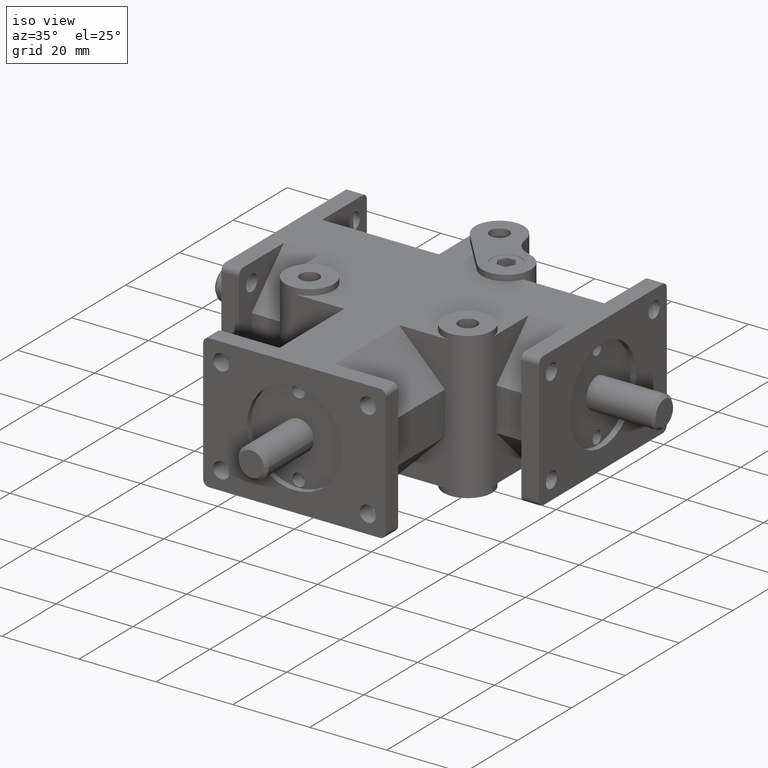
[diagram: clean part render]
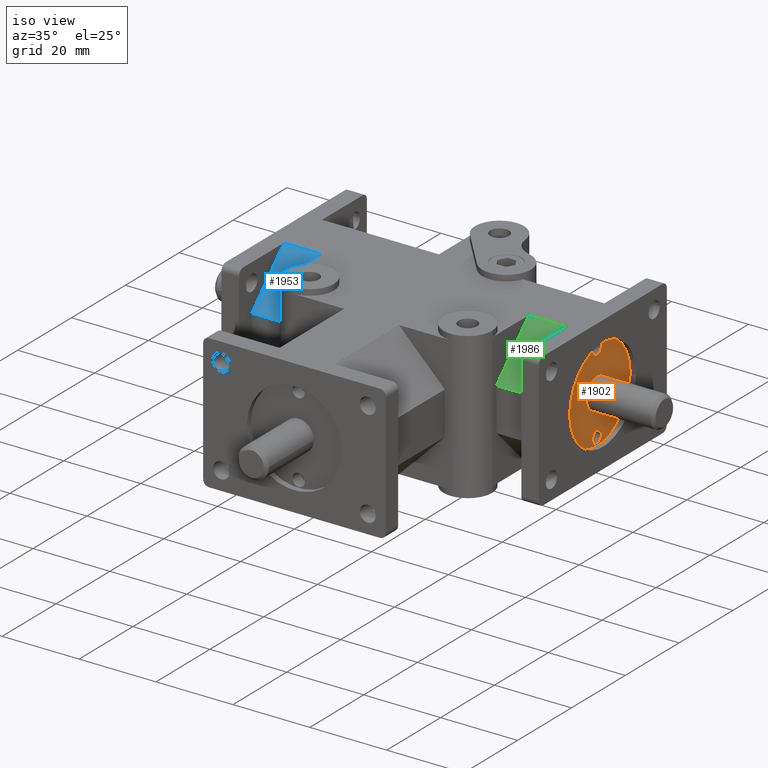
[diagram: same view with three faces highlighted in distinct colors, each labeled with its STEP entity id]
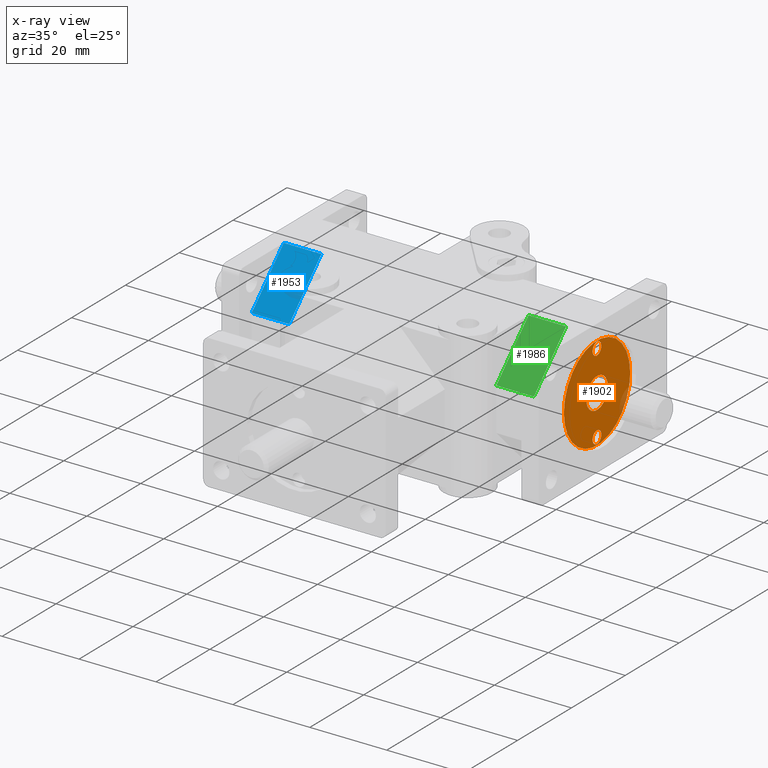
[diagram: x-ray of the same camera — body ghosted, the three highlighted faces saturated]
A machine part, iso view with three faces highlighted in distinct colors.
The next image is the same camera in x-ray (body ghosted, the three faces saturated) — at least one of them is partly hidden behind the body in this view.
Their STEP definitions:

[orange] entity #1902 — the highlighted planar face has unit normal (1, 0, 0).
#346=PLANE('',#2045);
#408=VERTEX_POINT('',#2759);
#410=VERTEX_POINT('',#2765);
#424=VERTEX_POINT('',#2806);
#427=VERTEX_POINT('',#2816);
#603=CIRCLE('',#2005,1.6256);
#605=CIRCLE('',#2009,1.6256);
#619=CIRCLE('',#2036,4.);
#622=CIRCLE('',#2043,12.3063);
#704=EDGE_CURVE('',#408,#408,#603,.T.);
#706=EDGE_CURVE('',#410,#410,#605,.T.);
#720=EDGE_CURVE('',#424,#424,#619,.T.);
#723=EDGE_CURVE('',#427,#427,#622,.T.);
#1001=ORIENTED_EDGE('',*,*,#704,.T.);
#1002=ORIENTED_EDGE('',*,*,#706,.T.);
#1003=ORIENTED_EDGE('',*,*,#720,.T.);
#1004=ORIENTED_EDGE('',*,*,#723,.T.);
#1521=EDGE_LOOP('',(#1001));
#1522=EDGE_LOOP('',(#1002));
#1523=EDGE_LOOP('',(#1003));
#1524=EDGE_LOOP('',(#1004));
#1720=FACE_BOUND('',#1521,.T.);
#1721=FACE_BOUND('',#1522,.T.);
#1722=FACE_BOUND('',#1523,.T.);
#1723=FACE_BOUND('',#1524,.T.);
#1902=ADVANCED_FACE('',(#1720,#1721,#1722,#1723),#346,.T.);
#2005=AXIS2_PLACEMENT_3D('',#2758,#2232,#2233);
#2009=AXIS2_PLACEMENT_3D('',#2764,#2239,#2240);
#2036=AXIS2_PLACEMENT_3D('',#2805,#2288,#2289);
#2043=AXIS2_PLACEMENT_3D('',#2815,#2300,#2301);
#2045=AXIS2_PLACEMENT_3D('',#2819,#2304,$);
#2232=DIRECTION('',(-1.,0.,0.));
#2233=DIRECTION('',(0.,1.6256,0.));
#2239=DIRECTION('',(-1.,0.,0.));
#2240=DIRECTION('',(0.,1.6256,0.));
#2288=DIRECTION('',(-1.,0.,0.));
#2289=DIRECTION('',(0.,4.,0.));
#2300=DIRECTION('',(1.,0.,0.));
#2301=DIRECTION('',(0.,12.3063,0.));
#2304=DIRECTION('',(1.,0.,0.));
#2758=CARTESIAN_POINT('',(39.751,55.5625,10.414));
#2759=CARTESIAN_POINT('',(39.751,53.9369,10.414));
#2764=CARTESIAN_POINT('',(39.751,55.5625,-10.414));
#2765=CARTESIAN_POINT('',(39.751,53.9369,-10.414));
#2805=CARTESIAN_POINT('',(39.751,55.5625,0.));
#2806=CARTESIAN_POINT('',(39.751,59.5625,0.));
#2815=CARTESIAN_POINT('',(39.751,55.5625,0.));
#2816=CARTESIAN_POINT('',(39.751,67.8688,0.));
#2819=CARTESIAN_POINT('',(39.751,56.6812545454545,1.10534099037544E-016));

[blue] entity #1953 — the highlighted planar face has unit normal (0, -0.7071, 0.7071).
#49=VECTOR('',#2429,1.);
#71=VECTOR('',#2463,1.);
#144=VECTOR('',#2604,1.);
#145=VECTOR('',#2606,1.);
#206=LINE('',#2958,#49);
#228=LINE('',#3006,#71);
#301=LINE('',#3189,#144);
#302=LINE('',#3191,#145);
#378=PLANE('',#2156);
#487=VERTEX_POINT('',#2957);
#488=VERTEX_POINT('',#2959);
#507=VERTEX_POINT('',#3007);
#571=VERTEX_POINT('',#3188);
#788=EDGE_CURVE('',#488,#487,#206,.F.);
#815=EDGE_CURVE('',#507,#488,#228,.T.);
#907=EDGE_CURVE('',#487,#571,#301,.T.);
#908=EDGE_CURVE('',#571,#507,#302,.F.);
#1294=ORIENTED_EDGE('',*,*,#908,.T.);
#1295=ORIENTED_EDGE('',*,*,#815,.T.);
#1296=ORIENTED_EDGE('',*,*,#788,.T.);
#1297=ORIENTED_EDGE('',*,*,#907,.T.);
#1608=EDGE_LOOP('',(#1294,#1295,#1296,#1297));
#1807=FACE_BOUND('',#1608,.T.);
#1953=ADVANCED_FACE('',(#1807),#378,.T.);
#2156=AXIS2_PLACEMENT_3D('',#3208,#2625,$);
#2429=DIRECTION('',(0.,0.707106781186547,0.707106781186548));
#2463=DIRECTION('',(-1.,0.,0.));
#2604=DIRECTION('',(1.,0.,0.));
#2606=DIRECTION('',(0.,-0.707106781186547,-0.707106781186548));
#2625=DIRECTION('',(0.,-0.707106781186548,0.707106781186547));
#2957=CARTESIAN_POINT('',(-36.703,36.5125,5.588));
#2958=CARTESIAN_POINT('',(-36.703,38.1,7.1755));
#2959=CARTESIAN_POINT('',(-36.703,48.4505,17.526));
#3006=CARTESIAN_POINT('',(-13.462,48.4505,17.526));
#3007=CARTESIAN_POINT('',(-26.924,48.4505,17.526));
#3188=CARTESIAN_POINT('',(-26.924,36.5125,5.588));
#3189=CARTESIAN_POINT('',(-13.462,36.5125,5.588));
#3191=CARTESIAN_POINT('',(-26.924,37.719,6.79450000000001));
#3208=CARTESIAN_POINT('',(-13.462,42.4815,11.557));

[green] entity #1986 — the highlighted planar face has unit normal (0, -0.7071, 0.7071).
#62=VECTOR('',#2450,1.);
#76=VECTOR('',#2475,1.);
#153=VECTOR('',#2651,1.);
#155=VECTOR('',#2654,1.);
#219=LINE('',#2988,#62);
#233=LINE('',#3022,#76);
#310=LINE('',#3232,#153);
#312=LINE('',#3235,#155);
#398=PLANE('',#2202);
#499=VERTEX_POINT('',#2987);
#500=VERTEX_POINT('',#2989);
#514=VERTEX_POINT('',#3023);
#581=VERTEX_POINT('',#3231);
#804=EDGE_CURVE('',#500,#499,#219,.T.);
#823=EDGE_CURVE('',#514,#500,#233,.F.);
#924=EDGE_CURVE('',#499,#581,#310,.F.);
#926=EDGE_CURVE('',#581,#514,#312,.T.);
#1436=ORIENTED_EDGE('',*,*,#823,.T.);
#1437=ORIENTED_EDGE('',*,*,#804,.T.);
#1438=ORIENTED_EDGE('',*,*,#924,.T.);
#1439=ORIENTED_EDGE('',*,*,#926,.T.);
#1661=EDGE_LOOP('',(#1436,#1437,#1438,#1439));
#1860=FACE_BOUND('',#1661,.T.);
#1986=ADVANCED_FACE('',(#1860),#398,.T.);
#2202=AXIS2_PLACEMENT_3D('',#3297,#2721,$);
#2450=DIRECTION('',(-1.,0.,0.));
#2475=DIRECTION('',(0.,-0.707106781186547,-0.707106781186548));
#2651=DIRECTION('',(0.,0.707106781186547,0.707106781186548));
#2654=DIRECTION('',(1.,0.,0.));
#2721=DIRECTION('',(0.,-0.707106781186548,0.707106781186547));
#2987=CARTESIAN_POINT('',(26.924,48.4505,17.526));
#2988=CARTESIAN_POINT('',(18.3515,48.4505,17.526));
#2989=CARTESIAN_POINT('',(36.703,48.4505,17.526));
#3022=CARTESIAN_POINT('',(36.703,36.92525,6.00075));
#3023=CARTESIAN_POINT('',(36.703,36.5125,5.588));
#3231=CARTESIAN_POINT('',(26.924,36.5125,5.588));
#3232=CARTESIAN_POINT('',(26.924,38.1,7.1755));
#3235=CARTESIAN_POINT('',(18.3515,36.5125,5.588));
#3297=CARTESIAN_POINT('',(18.3515,42.4815,11.557));